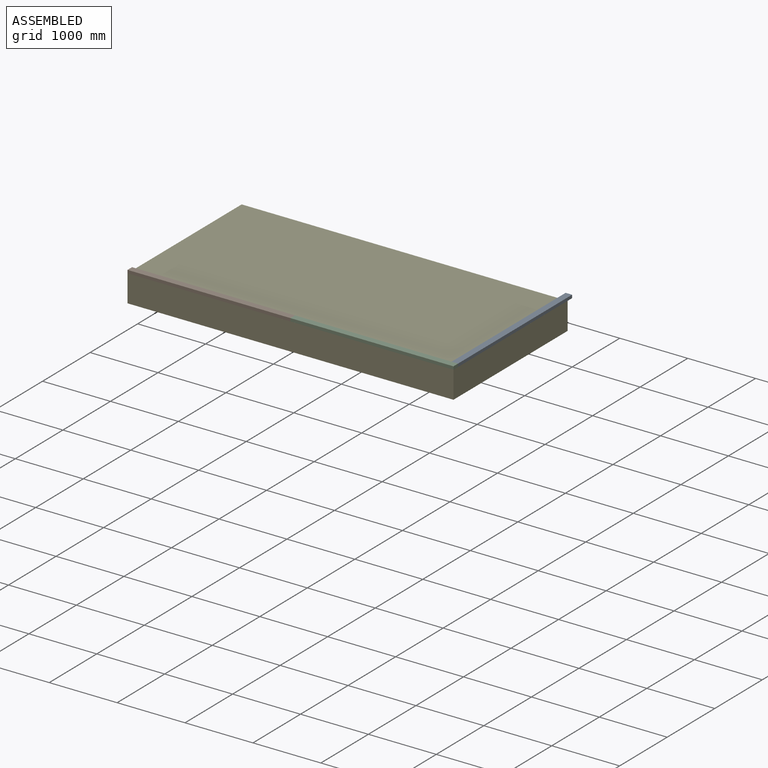
[diagram: assembled view]
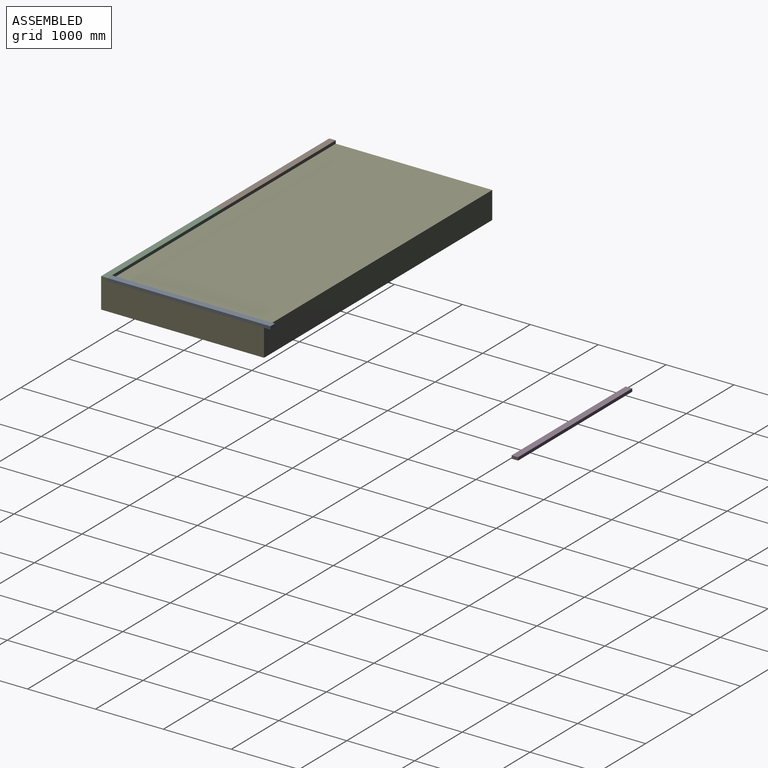
[diagram: assembled view, second angle]
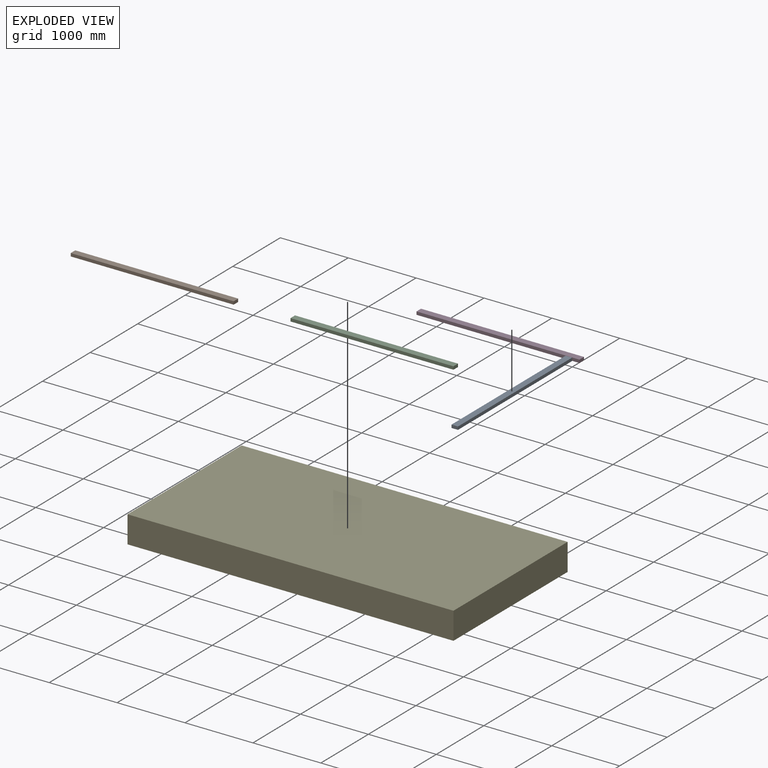
[diagram: exploded view]
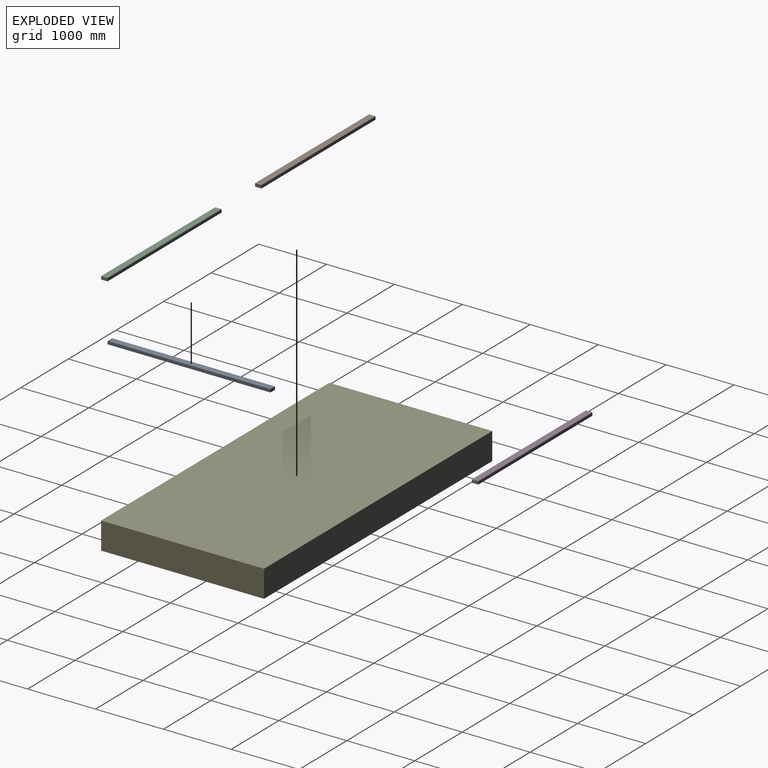
[diagram: exploded view, second angle]
ASSEMBLY  parts=5 mates=3
PART A: 6 faces, bbox 45x95x2400 mm
  f0: plane 2400x95mm, normal (-1,0,0), area 228000mm2, adj f1,f3,f4,f5
  f1: plane 2400x45mm, normal (0,-1,0), area 108000mm2, adj f0,f2,f4,f5
  f2: plane 2400x95mm, normal (1,0,0), area 228000mm2, adj f1,f3,f4,f5
  f3: plane 2400x45mm, normal (0,1,0), area 108000mm2, adj f0,f2,f4,f5
  f4: plane 95x45mm, normal (0,0,1), area 4275mm2, adj f0,f1,f2,f3
  f5: plane 95x45mm, normal (0,0,-1), area 4275mm2, adj f0,f1,f2,f3
PART B: same geometry as A
PART C: same geometry as A
PART D: same geometry as A
PART E: 6 faces, bbox 4800x2400x400 mm
  f0: plane 2400x400mm, normal (-1,0,0), area 960000mm2, adj f1,f3,f4,f5
  f1: plane 4800x400mm, normal (0,-1,0), area 1920000mm2, adj f0,f2,f4,f5
  f2: plane 2400x400mm, normal (1,0,0), area 960000mm2, adj f1,f3,f4,f5
  f3: plane 4800x400mm, normal (0,1,0), area 1920000mm2, adj f0,f2,f4,f5
  f4: plane 4800x2400mm, normal (0,0,-1), area 11520000mm2, adj f0,f1,f2,f3
  f5: plane 4800x2400mm, normal (0,0,1), area 11520000mm2, adj f0,f1,f2,f3
PLACE A rot(axis=(0.58,-0.58,0.58),120deg) t=(-608.98,-5915.2,2108.96)mm
PLACE B rot(axis=(0,-1,0),90deg) t=(-2960.01,-8361.23,2108.96)mm
PLACE C rot(axis=(0,-1,0),90deg) t=(-560.01,-8361.23,2108.96)mm
PLACE D rot(axis=(0,-1,0),90deg) t=(-2717.71,-3826.16,112.57)mm
PLACE E t=(-1051.42,-4817.86,2063.96)mm
MATE fastened E.f5 <-> B.f0  axis (0,0,1) through (-5360.01,-8410.2,2063.96)mm
MATE fastened A.f0 <-> C.f0  axis (0,0,1) through (-560.01,-8315.2,2063.96)mm
MATE planar C.f4 <-> B.f5  axis (-1,0,0) through (-2960.01,-8362.7,2086.46)mm
